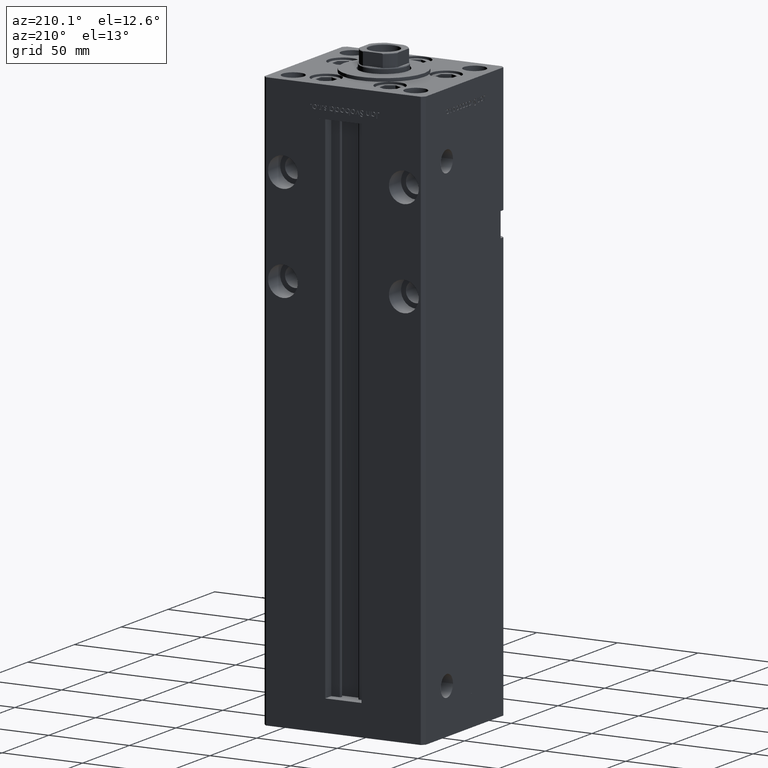
[diagram: clean part render]
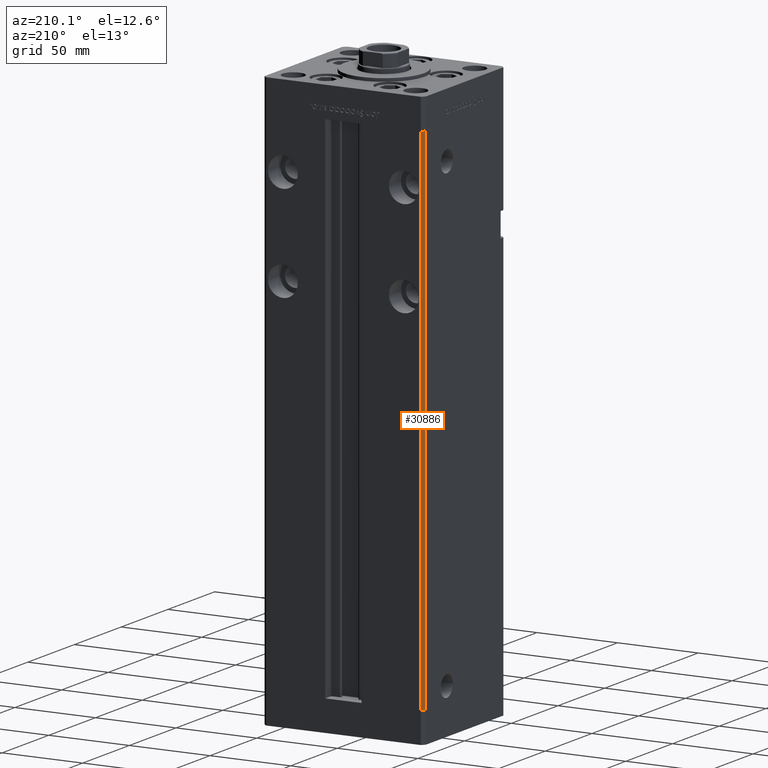
[diagram: same view with one face highlighted and labeled with its STEP entity id]
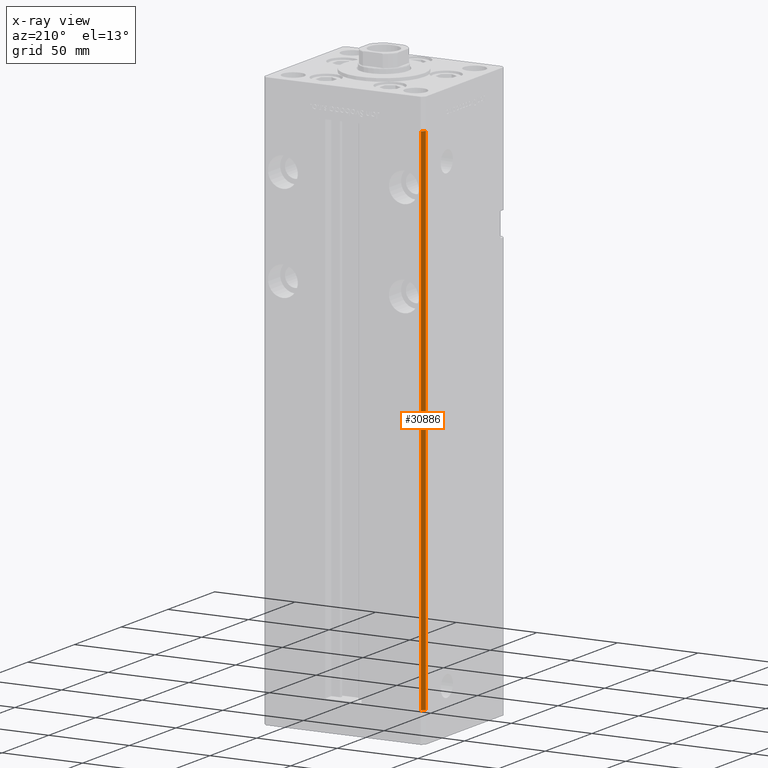
[diagram: x-ray of the same camera — body ghosted, the highlighted face saturated]
A machine part, auxiliary view. The second image highlights one B-rep face of the part: STEP entity #30886.
The next image is the same camera in x-ray: the body ghosted, the highlighted face saturated — about 0% of this face is hidden behind the body in this view.
In plain terms, the highlighted planar face has unit normal (0.7071, -0.7071, 0).
Its self-contained STEP definition (entity closure, byte-faithful):
#588 = CARTESIAN_POINT ( 'NONE',  ( -48.00000000000000711, 43.50000000000000000, 318.5000000000000000 ) ) ;
#3671 = AXIS2_PLACEMENT_3D ( 'NONE', #39574, #27161, #5909 ) ;
#5909 = DIRECTION ( 'NONE',  ( 0.7071067811865487940, 0.7071067811865463515, 0.000000000000000000 ) ) ;
#11008 = EDGE_LOOP ( 'NONE', ( #25262, #26532, #32308, #38197 ) ) ;
#11894 = EDGE_CURVE ( 'NONE', #42976, #40785, #33163, .T. ) ;
#14271 = VECTOR ( 'NONE', #29479, 1000.000000000000000 ) ;
#15009 = LINE ( 'NONE', #30888, #18314 ) ;
#16843 = LINE ( 'NONE', #29737, #14271 ) ;
#18314 = VECTOR ( 'NONE', #26861, 1000.000000000000000 ) ;
#18325 = EDGE_CURVE ( 'NONE', #40785, #21186, #44875, .T. ) ;
#20082 = DIRECTION ( 'NONE',  ( -0.000000000000000000, -0.000000000000000000, -1.000000000000000000 ) ) ;
#21186 = VERTEX_POINT ( 'NONE', #29159 ) ;
#22294 = CARTESIAN_POINT ( 'NONE',  ( -50.00000000000001421, 41.49999999999999289, 318.5000000000000000 ) ) ;
#25262 = ORIENTED_EDGE ( 'NONE', *, *, #46735, .T. ) ;
#26532 = ORIENTED_EDGE ( 'NONE', *, *, #18325, .F. ) ;
#26861 = DIRECTION ( 'NONE',  ( -0.000000000000000000, -0.000000000000000000, -1.000000000000000000 ) ) ;
#27161 = DIRECTION ( 'NONE',  ( 0.7071067811865463515, -0.7071067811865487940, 0.000000000000000000 ) ) ;
#28155 = CARTESIAN_POINT ( 'NONE',  ( -50.00000000000001421, 41.49999999999999289, 318.5000000000000000 ) ) ;
#29159 = CARTESIAN_POINT ( 'NONE',  ( -50.00000000000001421, 41.49999999999999289, 0.000000000000000000 ) ) ;
#29479 = DIRECTION ( 'NONE',  ( -0.7071067811865487940, -0.7071067811865463515, 0.000000000000000000 ) ) ;
#29737 = CARTESIAN_POINT ( 'NONE',  ( -48.00000000000000711, 43.50000000000000000, 0.000000000000000000 ) ) ;
#30886 = ADVANCED_FACE ( 'NONE', ( #34185 ), #50605, .F. ) ;
#30888 = CARTESIAN_POINT ( 'NONE',  ( -48.00000000000000711, 43.50000000000000000, 318.5000000000000000 ) ) ;
#32308 = ORIENTED_EDGE ( 'NONE', *, *, #11894, .F. ) ;
#32311 = EDGE_CURVE ( 'NONE', #42976, #48939, #15009, .T. ) ;
#33163 = LINE ( 'NONE', #41534, #41483 ) ;
#34185 = FACE_OUTER_BOUND ( 'NONE', #11008, .T. ) ;
#36054 = VECTOR ( 'NONE', #20082, 1000.000000000000000 ) ;
#38197 = ORIENTED_EDGE ( 'NONE', *, *, #32311, .T. ) ;
#39544 = CARTESIAN_POINT ( 'NONE',  ( -48.00000000000000711, 43.50000000000000000, 0.000000000000000000 ) ) ;
#39574 = CARTESIAN_POINT ( 'NONE',  ( -48.00000000000000711, 43.50000000000000000, 318.5000000000000000 ) ) ;
#40785 = VERTEX_POINT ( 'NONE', #22294 ) ;
#41483 = VECTOR ( 'NONE', #49593, 1000.000000000000000 ) ;
#41534 = CARTESIAN_POINT ( 'NONE',  ( -48.00000000000000711, 43.50000000000000000, 318.5000000000000000 ) ) ;
#42976 = VERTEX_POINT ( 'NONE', #588 ) ;
#44875 = LINE ( 'NONE', #28155, #36054 ) ;
#46735 = EDGE_CURVE ( 'NONE', #48939, #21186, #16843, .T. ) ;
#48939 = VERTEX_POINT ( 'NONE', #39544 ) ;
#49593 = DIRECTION ( 'NONE',  ( -0.7071067811865487940, -0.7071067811865463515, 0.000000000000000000 ) ) ;
#50605 = PLANE ( 'NONE',  #3671 ) ;